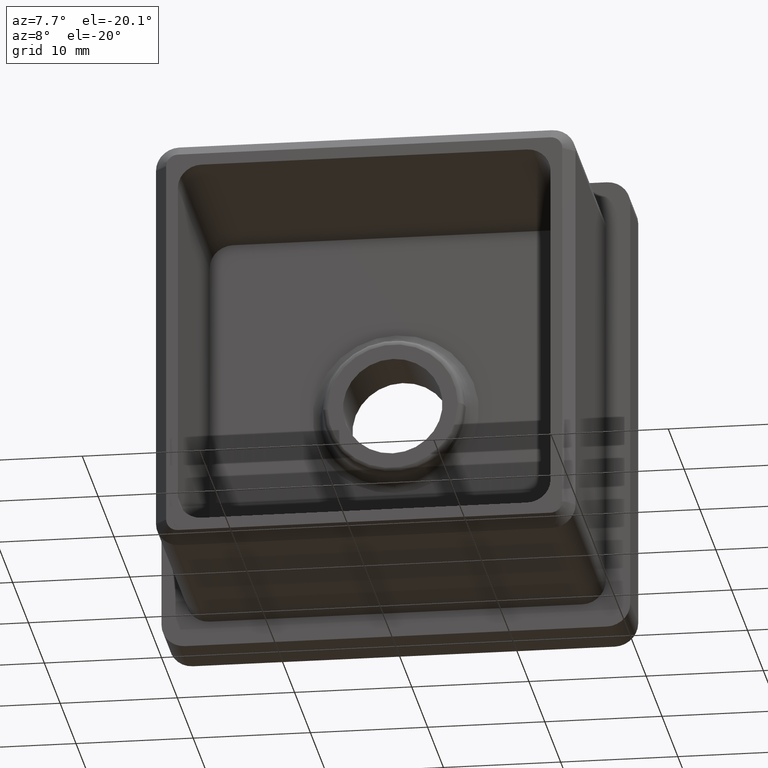
[diagram: clean part render]
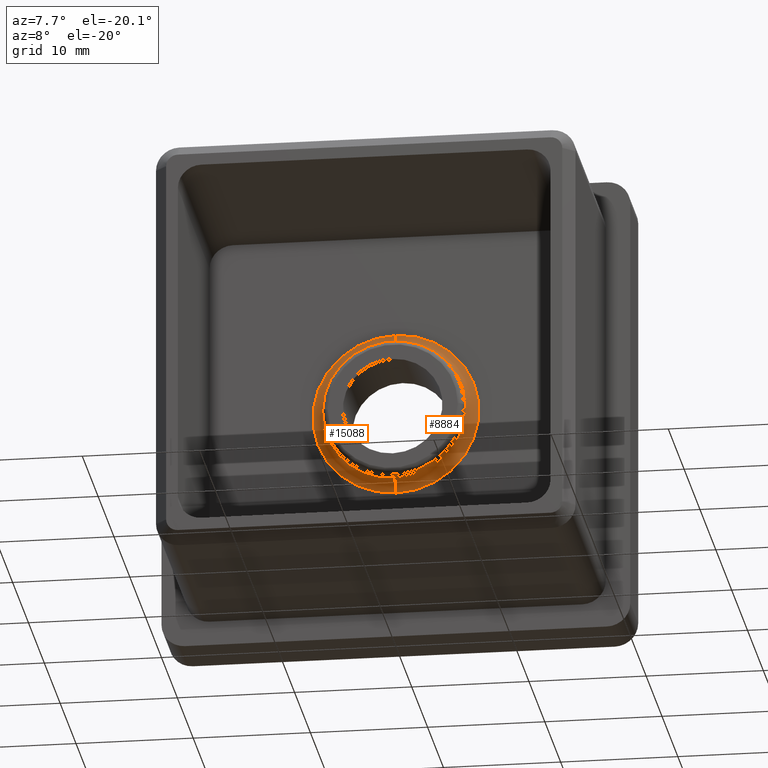
[diagram: same view with one multi-face feature highlighted, each face labeled with its STEP entity id]
A machine part, auxiliary view. The highlighted faces form ONE feature: a constant-radius fillet chain: 2 tangent blend faces with common blend radius 1 mm. The faces share edges in the B-rep.
Their STEP definitions:
[1] entity #8884 (Torus):
#257 = AXIS2_PLACEMENT_3D ( 'NONE', #6021, #3523, #9995 ) ;
#1376 = EDGE_LOOP ( 'NONE', ( #5609, #9897, #6303, #11497, #8333 ) ) ;
#1530 = CARTESIAN_POINT ( 'NONE',  ( 2.556028599677929100E-016, 0.0000000000000000000, 7.091308501069264000 ) ) ;
#1867 = TOROIDAL_SURFACE ( 'NONE', #7447, 7.091308501069264000, 1.000000000000000000 ) ;
#1942 = AXIS2_PLACEMENT_3D ( 'NONE', #6495, #2874, #14425 ) ;
#2141 = DIRECTION ( 'NONE',  ( 1.224646799147353500E-016, -1.000000000000000000, 0.0000000000000000000 ) ) ;
#2874 = DIRECTION ( 'NONE',  ( -1.000000000000000000, 0.0000000000000000000, 0.0000000000000000000 ) ) ;
#3373 = CARTESIAN_POINT ( 'NONE',  ( 2.556028599677929100E-016, -0.9128442572523489700, 2.091163823181700000E-016 ) ) ;
#3523 = DIRECTION ( 'NONE',  ( 1.224646799147353500E-016, -1.000000000000000000, 0.0000000000000000000 ) ) ;
#3764 = VERTEX_POINT ( 'NONE', #4723 ) ;
#3848 = CARTESIAN_POINT ( 'NONE',  ( 1.124037685727881600E-015, -1.000000000000000000, -7.091308501069264000 ) ) ;
#4651 = EDGE_CURVE ( 'NONE', #4684, #6234, #15393, .T. ) ;
#4684 = VERTEX_POINT ( 'NONE', #1530 ) ;
#4723 = CARTESIAN_POINT ( 'NONE',  ( 6.095113802977516900, -0.9128442572523483000, 7.464361609255268700E-016 ) ) ;
#5069 = FACE_OUTER_BOUND ( 'NONE', #1376, .T. ) ;
#5205 = CARTESIAN_POINT ( 'NONE',  ( 2.556028599677929100E-016, -1.000000000000000000, 2.091163823181700000E-016 ) ) ;
#5609 = ORIENTED_EDGE ( 'NONE', *, *, #14290, .F. ) ;
#6021 = CARTESIAN_POINT ( 'NONE',  ( 2.556028599677929100E-016, -0.9128442572523489700, 2.091163823181700000E-016 ) ) ;
#6090 = DIRECTION ( 'NONE',  ( -1.000000000000000000, -1.245163823469716900E-016, 0.0000000000000000000 ) ) ;
#6234 = VERTEX_POINT ( 'NONE', #9360 ) ;
#6303 = ORIENTED_EDGE ( 'NONE', *, *, #4651, .T. ) ;
#6495 = CARTESIAN_POINT ( 'NONE',  ( 2.556028599677929100E-016, -1.000000000000000000, 7.091308501069264000 ) ) ;
#6676 = CIRCLE ( 'NONE', #11629, 7.091308501069264000 ) ;
#7447 = AXIS2_PLACEMENT_3D ( 'NONE', #5205, #7693, #10279 ) ;
#7693 = DIRECTION ( 'NONE',  ( 0.0000000000000000000, 1.000000000000000000, 0.0000000000000000000 ) ) ;
#8333 = ORIENTED_EDGE ( 'NONE', *, *, #16488, .F. ) ;
#8656 = VERTEX_POINT ( 'NONE', #11060 ) ;
#8675 = CIRCLE ( 'NONE', #16527, 6.095113802977516000 ) ;
#8884 = ADVANCED_FACE ( 'NONE', ( #5069 ), #1867, .F. ) ;
#9297 = AXIS2_PLACEMENT_3D ( 'NONE', #3848, #12624, #10214 ) ;
#9360 = CARTESIAN_POINT ( 'NONE',  ( 2.556028599677929600E-016, -0.9128442572523489700, 6.095113802977516000 ) ) ;
#9593 = DIRECTION ( 'NONE',  ( 0.0000000000000000000, 1.000000000000000000, 0.0000000000000000000 ) ) ;
#9642 = DIRECTION ( 'NONE',  ( 0.0000000000000000000, 0.0000000000000000000, 1.000000000000000000 ) ) ;
#9897 = ORIENTED_EDGE ( 'NONE', *, *, #10017, .F. ) ;
#9995 = DIRECTION ( 'NONE',  ( -1.000000000000000000, -1.245163823469716900E-016, 0.0000000000000000000 ) ) ;
#10017 = EDGE_CURVE ( 'NONE', #4684, #16482, #6676, .T. ) ;
#10214 = DIRECTION ( 'NONE',  ( 1.224646799147352500E-016, 0.0000000000000000000, -1.000000000000000000 ) ) ;
#10279 = DIRECTION ( 'NONE',  ( 0.0000000000000000000, 0.0000000000000000000, 1.000000000000000000 ) ) ;
#10413 = CIRCLE ( 'NONE', #257, 6.095113802977516000 ) ;
#11060 = CARTESIAN_POINT ( 'NONE',  ( 1.063038353310600600E-015, -0.9128442572523489700, -6.095113802977516000 ) ) ;
#11497 = ORIENTED_EDGE ( 'NONE', *, *, #11514, .F. ) ;
#11514 = EDGE_CURVE ( 'NONE', #3764, #6234, #8675, .T. ) ;
#11629 = AXIS2_PLACEMENT_3D ( 'NONE', #12207, #9593, #9642 ) ;
#12207 = CARTESIAN_POINT ( 'NONE',  ( 2.556028599677929100E-016, 0.0000000000000000000, 2.091163823181700000E-016 ) ) ;
#12624 = DIRECTION ( 'NONE',  ( 1.000000000000000000, -0.0000000000000000000, 1.224646799147353200E-016 ) ) ;
#13783 = CARTESIAN_POINT ( 'NONE',  ( 1.124037685727881600E-015, 0.0000000000000000000, -7.091308501069264000 ) ) ;
#13861 = CIRCLE ( 'NONE', #9297, 1.000000000000000000 ) ;
#14290 = EDGE_CURVE ( 'NONE', #16482, #8656, #13861, .T. ) ;
#14425 = DIRECTION ( 'NONE',  ( 0.0000000000000000000, 0.0000000000000000000, 1.000000000000000000 ) ) ;
#15393 = CIRCLE ( 'NONE', #1942, 1.000000000000000000 ) ;
#16482 = VERTEX_POINT ( 'NONE', #13783 ) ;
#16488 = EDGE_CURVE ( 'NONE', #8656, #3764, #10413, .T. ) ;
#16527 = AXIS2_PLACEMENT_3D ( 'NONE', #3373, #2141, #6090 ) ;
[2] entity #15088 (Torus):
#459 = AXIS2_PLACEMENT_3D ( 'NONE', #15898, #5658, #7006 ) ;
#728 = ORIENTED_EDGE ( 'NONE', *, *, #14290, .T. ) ;
#800 = DIRECTION ( 'NONE',  ( 0.0000000000000000000, 1.000000000000000000, 0.0000000000000000000 ) ) ;
#1530 = CARTESIAN_POINT ( 'NONE',  ( 2.556028599677929100E-016, 0.0000000000000000000, 7.091308501069264000 ) ) ;
#1894 = DIRECTION ( 'NONE',  ( 1.224646799147353500E-016, -1.000000000000000000, 0.0000000000000000000 ) ) ;
#1900 = ORIENTED_EDGE ( 'NONE', *, *, #9231, .F. ) ;
#1942 = AXIS2_PLACEMENT_3D ( 'NONE', #6495, #2874, #14425 ) ;
#2228 = DIRECTION ( 'NONE',  ( 0.0000000000000000000, 0.0000000000000000000, 1.000000000000000000 ) ) ;
#2874 = DIRECTION ( 'NONE',  ( -1.000000000000000000, 0.0000000000000000000, 0.0000000000000000000 ) ) ;
#3274 = CARTESIAN_POINT ( 'NONE',  ( 2.556028599677929100E-016, -1.000000000000000000, 2.091163823181700000E-016 ) ) ;
#3314 = VERTEX_POINT ( 'NONE', #8782 ) ;
#3848 = CARTESIAN_POINT ( 'NONE',  ( 1.124037685727881600E-015, -1.000000000000000000, -7.091308501069264000 ) ) ;
#4485 = ORIENTED_EDGE ( 'NONE', *, *, #15543, .F. ) ;
#4651 = EDGE_CURVE ( 'NONE', #4684, #6234, #15393, .T. ) ;
#4684 = VERTEX_POINT ( 'NONE', #1530 ) ;
#5658 = DIRECTION ( 'NONE',  ( 1.224646799147353500E-016, -1.000000000000000000, 0.0000000000000000000 ) ) ;
#6234 = VERTEX_POINT ( 'NONE', #9360 ) ;
#6495 = CARTESIAN_POINT ( 'NONE',  ( 2.556028599677929100E-016, -1.000000000000000000, 7.091308501069264000 ) ) ;
#6948 = AXIS2_PLACEMENT_3D ( 'NONE', #11006, #1894, #8305 ) ;
#7006 = DIRECTION ( 'NONE',  ( -1.000000000000000000, -1.245163823469716900E-016, 0.0000000000000000000 ) ) ;
#7267 = AXIS2_PLACEMENT_3D ( 'NONE', #3274, #800, #9798 ) ;
#8036 = TOROIDAL_SURFACE ( 'NONE', #7267, 7.091308501069264000, 1.000000000000000000 ) ;
#8305 = DIRECTION ( 'NONE',  ( -1.000000000000000000, -1.245163823469716900E-016, 0.0000000000000000000 ) ) ;
#8306 = CIRCLE ( 'NONE', #15163, 7.091308501069264000 ) ;
#8656 = VERTEX_POINT ( 'NONE', #11060 ) ;
#8782 = CARTESIAN_POINT ( 'NONE',  ( -6.095113802977517800, -0.9128442572523496300, 0.0000000000000000000 ) ) ;
#8856 = DIRECTION ( 'NONE',  ( 0.0000000000000000000, 1.000000000000000000, 0.0000000000000000000 ) ) ;
#9231 = EDGE_CURVE ( 'NONE', #16482, #4684, #8306, .T. ) ;
#9297 = AXIS2_PLACEMENT_3D ( 'NONE', #3848, #12624, #10214 ) ;
#9360 = CARTESIAN_POINT ( 'NONE',  ( 2.556028599677929600E-016, -0.9128442572523489700, 6.095113802977516000 ) ) ;
#9479 = EDGE_CURVE ( 'NONE', #6234, #3314, #9526, .T. ) ;
#9526 = CIRCLE ( 'NONE', #459, 6.095113802977516000 ) ;
#9708 = ORIENTED_EDGE ( 'NONE', *, *, #4651, .F. ) ;
#9798 = DIRECTION ( 'NONE',  ( 0.0000000000000000000, 0.0000000000000000000, 1.000000000000000000 ) ) ;
#10214 = DIRECTION ( 'NONE',  ( 1.224646799147352500E-016, 0.0000000000000000000, -1.000000000000000000 ) ) ;
#11006 = CARTESIAN_POINT ( 'NONE',  ( 2.556028599677929100E-016, -0.9128442572523489700, 2.091163823181700000E-016 ) ) ;
#11060 = CARTESIAN_POINT ( 'NONE',  ( 1.063038353310600600E-015, -0.9128442572523489700, -6.095113802977516000 ) ) ;
#12624 = DIRECTION ( 'NONE',  ( 1.000000000000000000, -0.0000000000000000000, 1.224646799147353200E-016 ) ) ;
#13524 = EDGE_LOOP ( 'NONE', ( #1900, #728, #4485, #14624, #9708 ) ) ;
#13783 = CARTESIAN_POINT ( 'NONE',  ( 1.124037685727881600E-015, 0.0000000000000000000, -7.091308501069264000 ) ) ;
#13861 = CIRCLE ( 'NONE', #9297, 1.000000000000000000 ) ;
#14290 = EDGE_CURVE ( 'NONE', #16482, #8656, #13861, .T. ) ;
#14425 = DIRECTION ( 'NONE',  ( 0.0000000000000000000, 0.0000000000000000000, 1.000000000000000000 ) ) ;
#14430 = CIRCLE ( 'NONE', #6948, 6.095113802977516000 ) ;
#14624 = ORIENTED_EDGE ( 'NONE', *, *, #9479, .F. ) ;
#14846 = FACE_OUTER_BOUND ( 'NONE', #13524, .T. ) ;
#15088 = ADVANCED_FACE ( 'NONE', ( #14846 ), #8036, .F. ) ;
#15163 = AXIS2_PLACEMENT_3D ( 'NONE', #16446, #8856, #2228 ) ;
#15393 = CIRCLE ( 'NONE', #1942, 1.000000000000000000 ) ;
#15543 = EDGE_CURVE ( 'NONE', #3314, #8656, #14430, .T. ) ;
#15898 = CARTESIAN_POINT ( 'NONE',  ( 2.556028599677929100E-016, -0.9128442572523489700, 2.091163823181700000E-016 ) ) ;
#16446 = CARTESIAN_POINT ( 'NONE',  ( 2.556028599677929100E-016, 0.0000000000000000000, 2.091163823181700000E-016 ) ) ;
#16482 = VERTEX_POINT ( 'NONE', #13783 ) ;